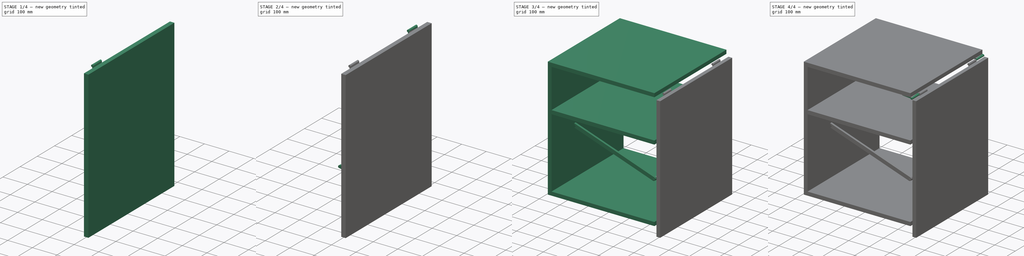
[diagram: build sequence overview — one tinted view per stage of 4, left to right]
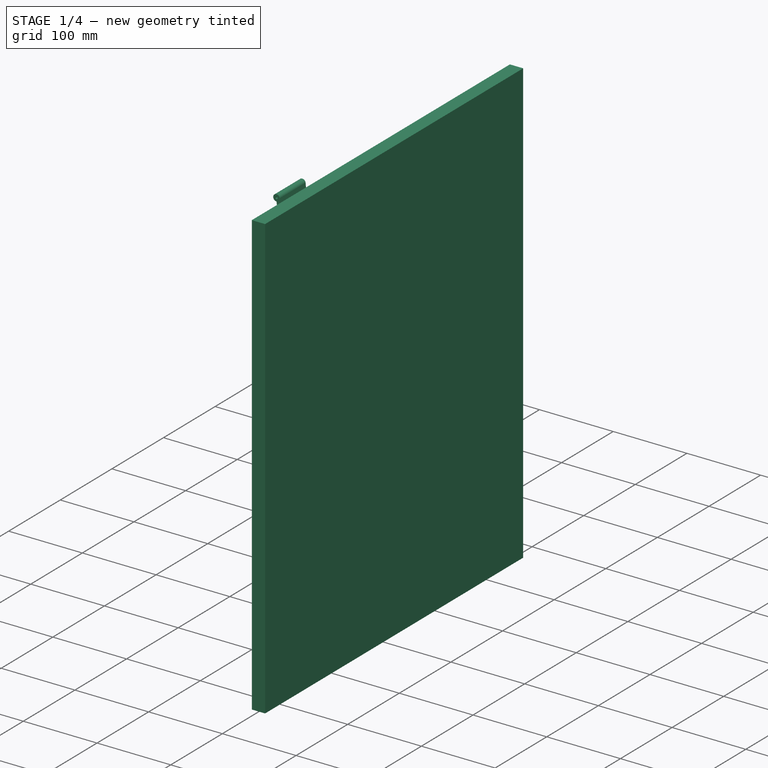
[diagram: stage 1 of 4 — iso view after this stage's code; geometry added in this stage tinted green]
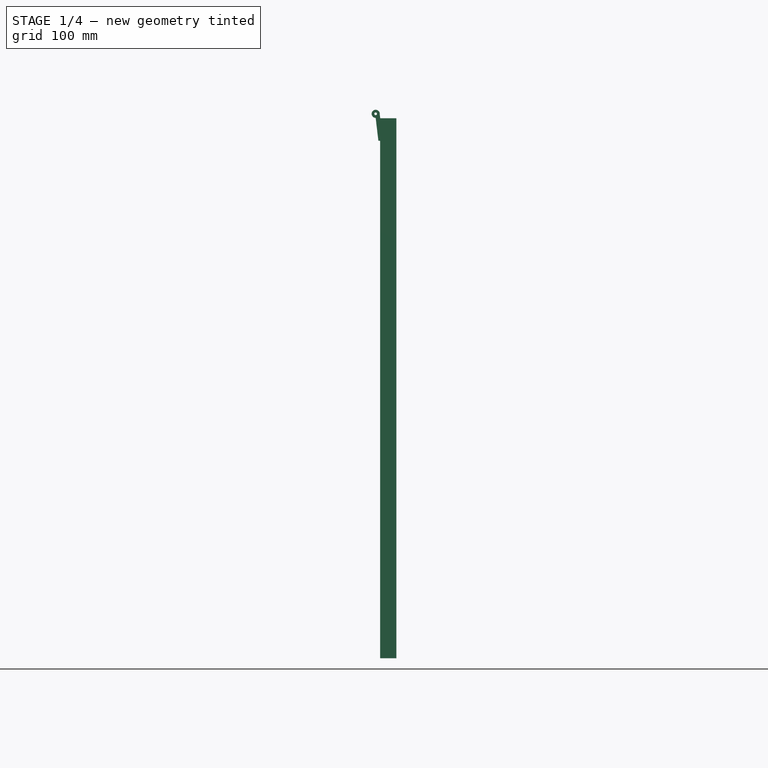
[diagram: stage 1 of 4 — front view after this stage's code; geometry added in this stage tinted green]
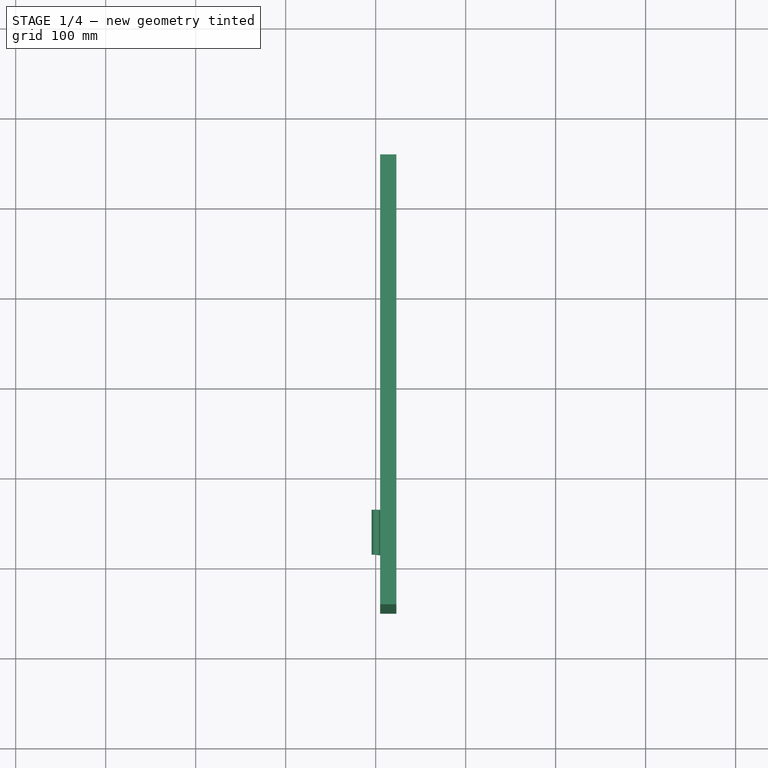
[diagram: stage 1 of 4 — top view after this stage's code; geometry added in this stage tinted green]
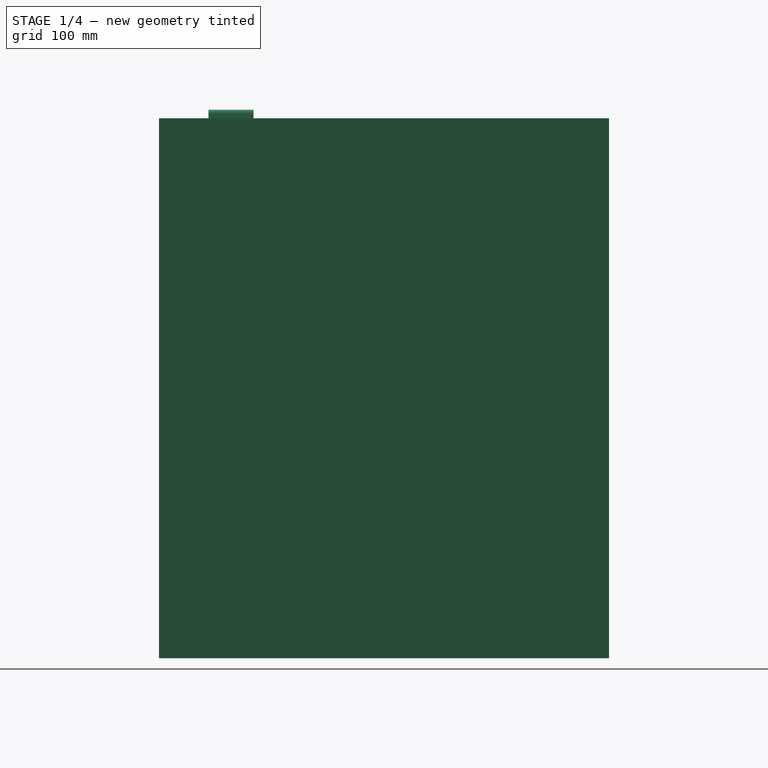
[diagram: stage 1 of 4 — right view after this stage's code; geometry added in this stage tinted green]
FCSTD DOCUMENT  (FreeCAD 0.21R33771 (Git))
Label: table_jeu
License: All rights reserved
LicenseURL: https://en.wikipedia.org/wiki/All_rights_reserved
objects: Sketcher::SketchObject×6, PartDesign::Pad×6, PartDesign::CoordinateSystem×4, PartDesign::Body×3, PartDesign::Mirrored×3, App::Part×3, App::DocumentObjectGroup×3, PartDesign::Plane×2, App::Link×2, Spreadsheet::Sheet×1, PartDesign::Line×1, App::FeaturePython×1
note: 31 computed .brp shape members not serialized (recipe doc carries the construction recipe); baked Part::Feature solids carry a one-line shape summary decoded from their .brp

FEATURE [Sketcher::SketchObject] Sketch002
  FullyConstrained = true
  MapMode = 5
  Placement = pos=(0,0,0) rot=(1,0,0;1.5708rad)
  Support = -> [XZ_Plane003]
  expr: Constraints[8] = Spreadsheet.plk_thic
  sketch-geometry (4):
    g0: LineSegment StartX=5 StartY=-5 StartZ=0 EndX=23 EndY=-5 EndZ=0
    g1: LineSegment StartX=23 StartY=-5 StartZ=0 EndX=23 EndY=-605 EndZ=0
    g2: LineSegment StartX=23 StartY=-605 StartZ=0 EndX=5 EndY=-605 EndZ=0
    g3: LineSegment StartX=5 StartY=-605 StartZ=0 EndX=5 EndY=-5 EndZ=0
  constraints (12):
    c: Coincident(g0,g1)
    c: Coincident(g1,g2)
    c: Coincident(g2,g3)
    c: Coincident(g3,g0)
    c: Horizontal(g0)
    c: Horizontal(g2)
    c: Vertical(g1)
    c: Vertical(g3)
    c: Distance(g0) = 18
    c: DistanceX(g-1,g0) = 5
    c: DistanceY(g0,g-1) = 5
    c: Distance(g3) = 600
FEATURE [PartDesign::Pad] Pad002
  Direction = (0,-1,-2e-16)
  Length = 500
  Length2 = 10
  Midplane = true
  Placement = pos=(0,0,0) rot=(1,0,0;1.5708rad)
  Profile = -> Sketch002
  ReferenceAxis = -> Sketch002 [N_Axis]
  Type = 0
FEATURE [Sketcher::SketchObject] Sketch003
  ExternalGeometry = -> [Pad002]
  FullyConstrained = true
  MapMode = 5
  Placement = pos=(0,-250,-5.55e-14) rot=(1,0,0;1.5708rad)
  Support = -> [Pad002]
  sketch-geometry (6):
    g0: Circle CenterX=-3.47e-14 CenterY=0 CenterZ=0 NormalX=0 NormalY=0 NormalZ=1 AngleXU=0 Radius=1.5
    g1: ArcOfCircle CenterX=-3.47e-14 CenterY=0 CenterZ=0 NormalX=0 NormalY=0 NormalZ=1 AngleXU=0 Radius=4.5 StartAngle=0 EndAngle=4.71239
    g2: LineSegment StartX=4.5 StartY=0 StartZ=0 EndX=5 EndY=-5 EndZ=0
    g3: LineSegment StartX=5 StartY=-5 StartZ=0 EndX=5 EndY=-30 EndZ=0
    g4: LineSegment StartX=5 StartY=-30 StartZ=0 EndX=3 EndY=-30 EndZ=0
    g5: LineSegment StartX=3 StartY=-30 StartZ=0 EndX=-3.46e-14 EndY=-4.5 EndZ=0
  constraints (16):
    c: Coincident(g0,g-1)
    c: Coincident(g1,g0)
    c: PointOnObject(g1,g-1)
    c: Diameter(g0) = 3
    c: Radius(g1) = 4.5
    c: Coincident(g1,g2)
    c: Coincident(g2,g-3)
    c: Coincident(g2,g3)
    c: PointOnObject(g3,g-3)
    c: Coincident(g3,g4)
    c: Horizontal(g4)
    c: Coincident(g4,g5)
    c: Coincident(g5,g1)
    c: Distance(g4) = 2
    c: Distance(g3) = 25
    c: Vertical(g0,g1)
FEATURE [PartDesign::Pad] Pad003
  BaseFeature = -> Pad002
  Direction = (0,-1,-2e-16)
  Length = 105
  Length2 = -55
  Placement = pos=(0,0,0) rot=(1,0,0;1.5708rad)
  Profile = -> Sketch003
  ReferenceAxis = -> Sketch003 [N_Axis]
  Reversed = true
  Type = 4
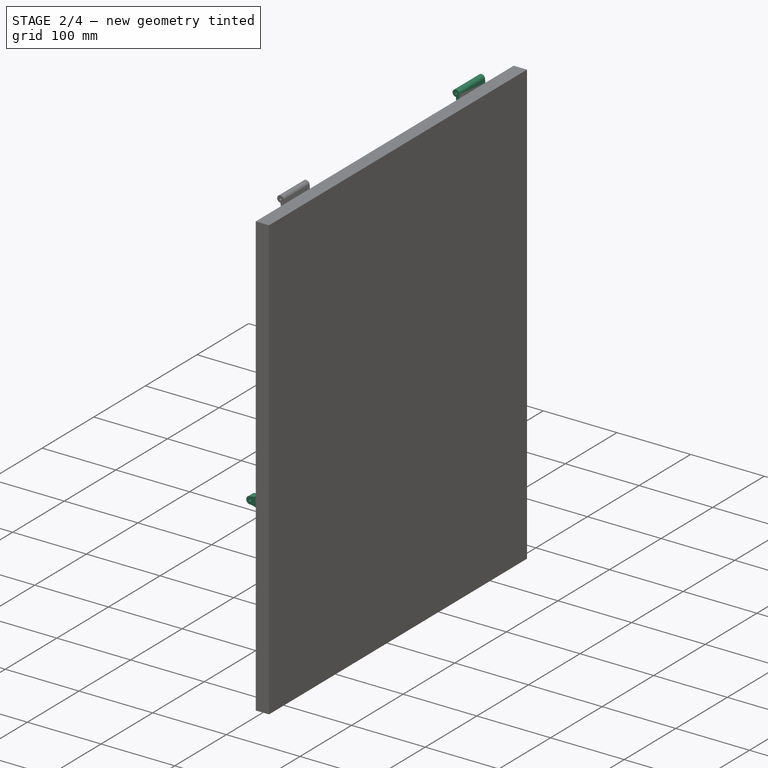
[diagram: stage 2 of 4 — iso view after this stage's code; geometry added in this stage tinted green]
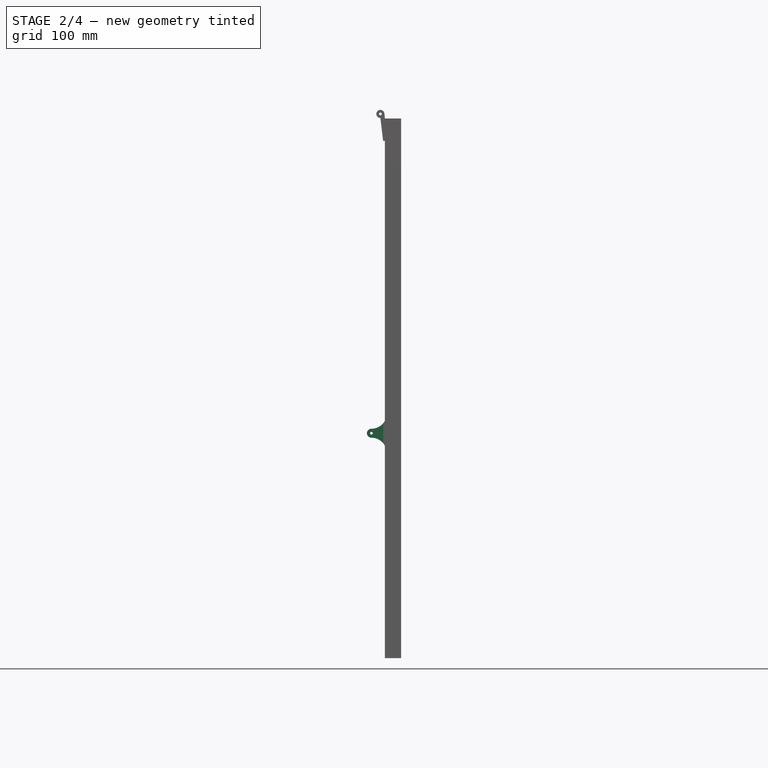
[diagram: stage 2 of 4 — front view after this stage's code; geometry added in this stage tinted green]
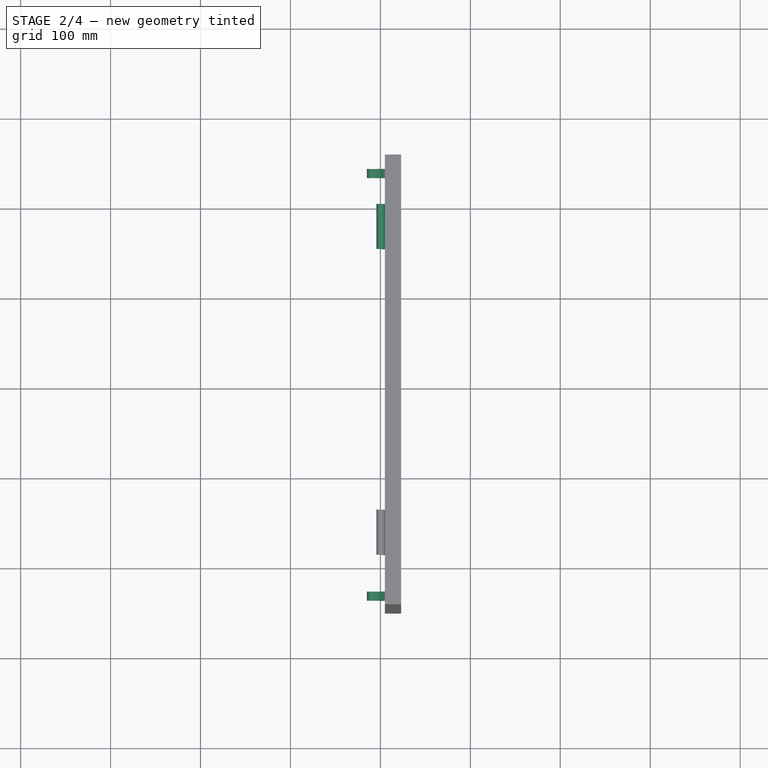
[diagram: stage 2 of 4 — top view after this stage's code; geometry added in this stage tinted green]
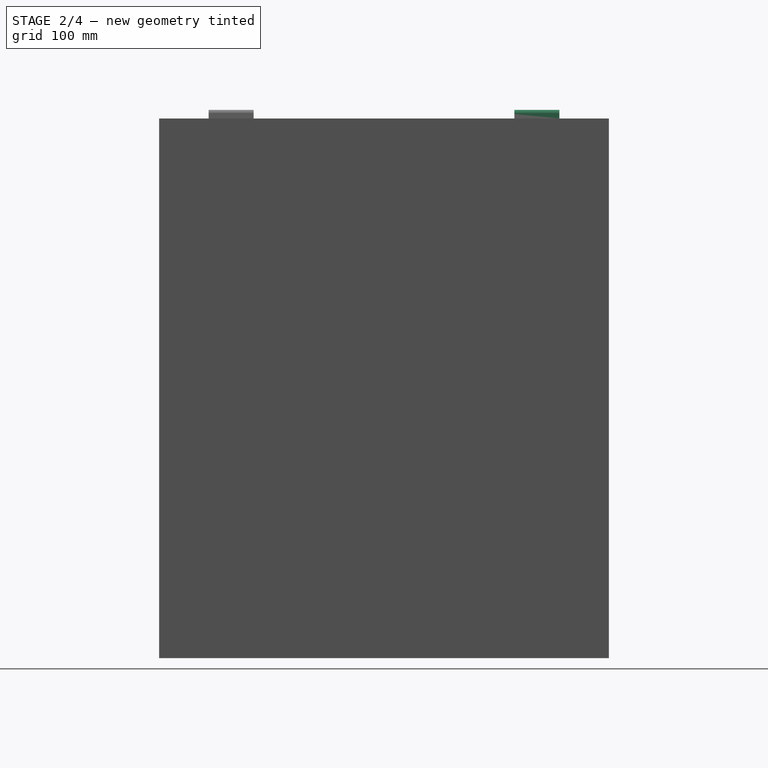
[diagram: stage 2 of 4 — right view after this stage's code; geometry added in this stage tinted green]
FEATURE [Sketcher::SketchObject] Sketch004
  ExternalGeometry = -> [Pad003]
  FullyConstrained = true
  MapMode = 5
  Placement = pos=(0,-250,-5.55e-14) rot=(1,0,0;1.5708rad)
  Support = -> [Pad003]
  sketch-geometry (6):
    g0: Circle CenterX=-10 CenterY=-355 CenterZ=0 NormalX=0 NormalY=0 NormalZ=1 AngleXU=0 Radius=1.5
    g1: ArcOfCircle CenterX=-10 CenterY=-355 CenterZ=0 NormalX=0 NormalY=0 NormalZ=1 AngleXU=0 Radius=5 StartAngle=1.5708 EndAngle=4.71239
    g2: ArcOfCircle CenterX=-10 CenterY=-377 CenterZ=0 NormalX=0 NormalY=0 NormalZ=1 AngleXU=0 Radius=17 StartAngle=0.489957 EndAngle=1.5708
    g3: LineSegment StartX=5 StartY=-369 StartZ=0 EndX=5 EndY=-341 EndZ=0
    g4: ArcOfCircle CenterX=-10 CenterY=-333 CenterZ=0 NormalX=0 NormalY=0 NormalZ=1 AngleXU=0 Radius=17 StartAngle=4.71239 EndAngle=5.79323
    g5: GeomPoint X=5 Y=-355 Z=0
  constraints (17):
    c: Coincident(g1,g0)
    c: Tangent(g1,g2) = 1.5708
    c: PointOnObject(g2,g-3)
    c: Coincident(g2,g3)
    c: Coincident(g4,g3)
    c: Coincident(g4,g1)
    c: Diameter(g0) = 3
    c: Radius(g1) = 5
    c: PointOnObject(g3,g-3)
    c: Equal(g2,g4)
    c: Vertical(g1,g1)
    c: Vertical(g1,g0)
    c: Symmetric(g3,g2,g5)
    c: Horizontal(g0,g5)
    c: DistanceY(g-3,g0) = 250
    c: DistanceX(g0,g5) = 15
    c: Radius(g4) = 17
FEATURE [PartDesign::Pad] Pad004
  BaseFeature = -> Pad003
  Direction = (0,-1,-2e-16)
  Length = 20
  Length2 = -10
  Placement = pos=(0,0,0) rot=(1,0,0;1.5708rad)
  Profile = -> Sketch004
  ReferenceAxis = -> Sketch004 [N_Axis]
  Reversed = true
  Type = 4
FEATURE [PartDesign::Mirrored] Mirrored001
  BaseFeature = -> Pad004
  MirrorPlane = -> XZ_Plane003
  Originals = -> [Pad003,Pad004]
  Placement = pos=(0,0,0) rot=(1,0,0;1.5708rad)
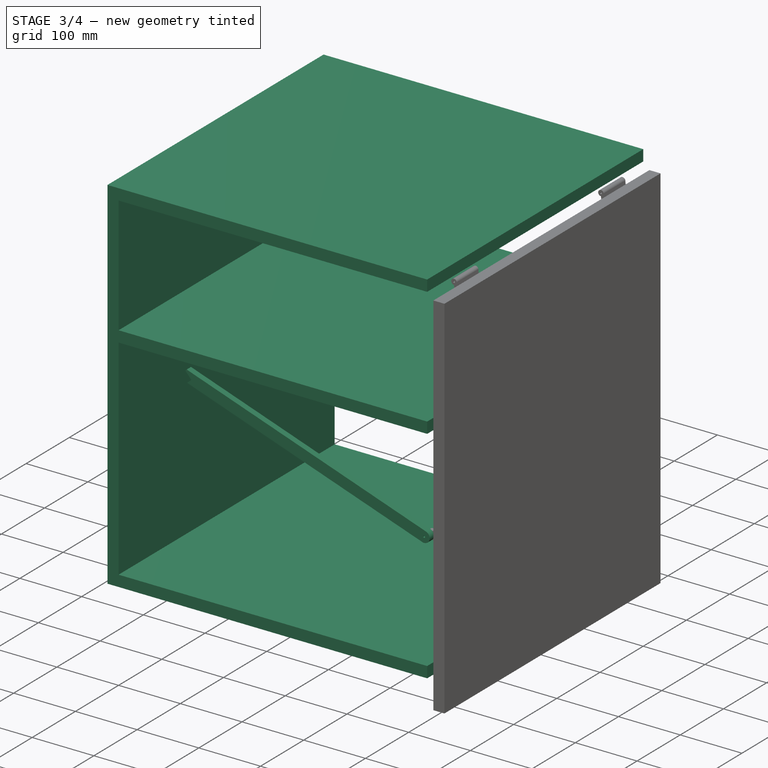
[diagram: stage 3 of 4 — iso view after this stage's code; geometry added in this stage tinted green]
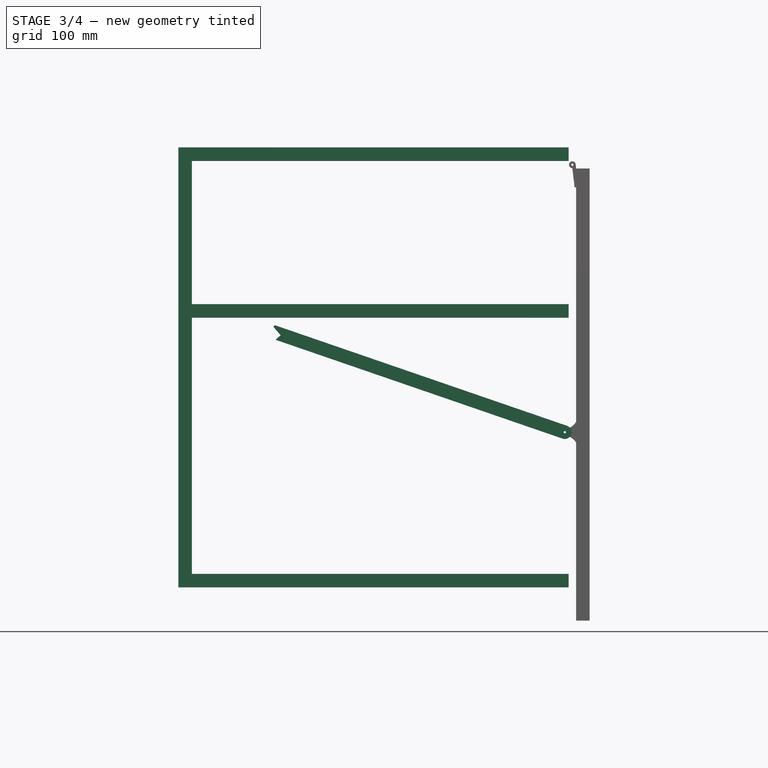
[diagram: stage 3 of 4 — front view after this stage's code; geometry added in this stage tinted green]
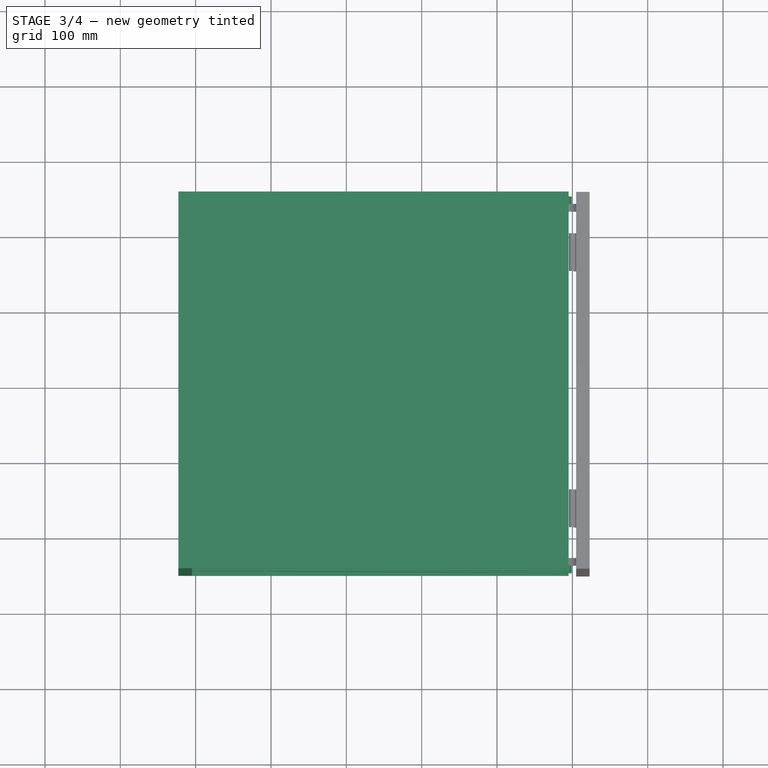
[diagram: stage 3 of 4 — top view after this stage's code; geometry added in this stage tinted green]
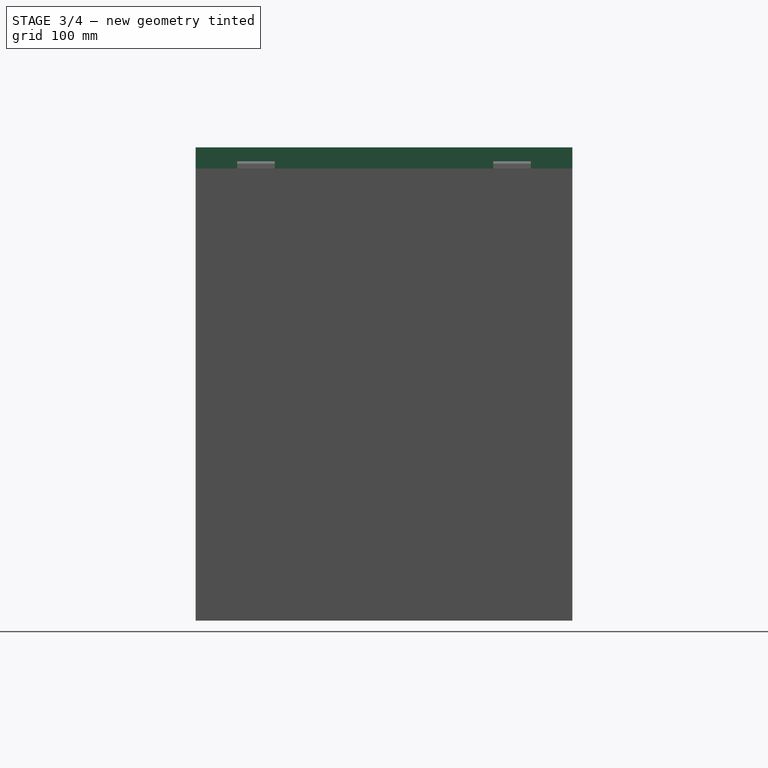
[diagram: stage 3 of 4 — right view after this stage's code; geometry added in this stage tinted green]
FEATURE [PartDesign::Body] Body
  Origin = -> Origin
FEATURE [Sketcher::SketchObject] Sketch
  FullyConstrained = true
  MapMode = 5
  Placement = pos=(0,0,0) rot=(1,0,0;1.5708rad)
  Support = -> [XZ_Plane007]
  expr: Constraints[1] = Spreadsheet.plk_thic
  expr: Constraints[27] = Spreadsheet.plk_thic
  sketch-geometry (12):
    g0: LineSegment StartX=-5 StartY=5 StartZ=0 EndX=-5 EndY=23 EndZ=0
    g1: LineSegment StartX=-5 StartY=23 StartZ=0 EndX=-523 EndY=23 EndZ=0
    g2: LineSegment StartX=-523 StartY=23 StartZ=0 EndX=-523 EndY=-561 EndZ=0
    g3: LineSegment StartX=-523 StartY=-561 StartZ=0 EndX=-5 EndY=-561 EndZ=0
    g4: LineSegment StartX=-5 StartY=-561 StartZ=0 EndX=-5 EndY=-543 EndZ=0
    g5: LineSegment StartX=-5 StartY=-543 StartZ=0 EndX=-505 EndY=-543 EndZ=0
    g6: LineSegment StartX=-505 StartY=-543 StartZ=0 EndX=-505 EndY=-203 EndZ=0
    g7: LineSegment StartX=-505 StartY=-203 StartZ=0 EndX=-5 EndY=-203 EndZ=0
    g8: LineSegment StartX=-5 StartY=-203 StartZ=0 EndX=-5 EndY=-185 EndZ=0
    g9: LineSegment StartX=-5 StartY=-185 StartZ=0 EndX=-505 EndY=-185 EndZ=0
    g10: LineSegment StartX=-505 StartY=-185 StartZ=0 EndX=-505 EndY=5 EndZ=0
    g11: LineSegment StartX=-505 StartY=5 StartZ=0 EndX=-5 EndY=5 EndZ=0
  constraints (36):
    c: Vertical(g0)
    c: DistanceY(g0,g0) = 18
    c: Coincident(g0,g1)
    c: Horizontal(g1)
    c: Coincident(g1,g2)
    c: Vertical(g2)
    c: Coincident(g2,g3)
    c: Horizontal(g3)
    c: Coincident(g3,g4)
    c: Vertical(g4)
    c: Coincident(g4,g5)
    c: Horizontal(g5)
    c: Coincident(g5,g6)
    c: Vertical(g6)
    c: Coincident(g6,g7)
    c: Horizontal(g7)
    c: Coincident(g7,g8)
    c: Vertical(g8)
    c: Coincident(g8,g9)
    c: Horizontal(g9)
    c: Coincident(g9,g10)
    c: Vertical(g10)
    c: Coincident(g10,g11)
    c: Coincident(g11,g0)
    c: Horizontal(g11)
    c: Equal(g8,g4)
    c: Equal(g4,g0)
    c: DistanceX(g1,g10) = 18
    c: Vertical(g6,g9)
    c: Distance(g10) = 190
    c: Distance(g6) = 340
    c: Vertical(g8,g0)
    c: Vertical(g3,g7)
    c: Distance(g9) = 500
    c: DistanceX(g0,g-1) = 5
    c: DistanceY(g-1,g0) = 5
FEATURE [Spreadsheet::Sheet] Spreadsheet
  cells = A1='plk_thic; B1(plk_thic)==18 mm; A2='lid_angle; B2(lid_angle)==Variables.t_anim * 90; A3='leg_angle; B3(leg_angle)==-19 - lid_angle / 2; B4='26-lid_angle; B5=0; C5=90; B6=-20; C6=-64
FEATURE [PartDesign::Pad] Pad
  Direction = (0,-1,2e-16)
  Length = 500
  Length2 = 10
  Midplane = true
  Placement = pos=(0,0,0) rot=(1,0,0;1.5708rad)
  Profile = -> Sketch
  ReferenceAxis = -> Sketch [N_Axis]
  Type = 0
FEATURE [PartDesign::Plane] Plane_1
  Length = 100
  MapMode = 5
  Placement = pos=(0,-200,0) rot=(-1,0,0;1.5708rad)
  ResizeMode = 1
  Support = -> [Mirrored]
  Width = 100
FEATURE [PartDesign::Line] HoleAxis_1
  AttacherType = Attacher::AttachEngineLine
  Length = 4.2272
  MapMode = 19
  Placement = pos=(0,-250,5.55e-14) rot=(1,0,0;1.5708rad)
  ResizeMode = 1
  Support = -> [Mirrored]
FEATURE [PartDesign::CoordinateSystem] LCS_1
  AttacherType = Attacher::AttachEngine3D
  MapMode = 5
  Placement = pos=(0,-200,0) rot=(-1,0,0;1.5708rad)
  Support = -> [Plane_1]
FEATURE [App::Part] Part  label="Coffre"
  Group = -> [Body,Sketch,Pad,Sketch001,Pad001,Mirrored,HoleAxis_1,Plane_1,LCS_1]
  Origin = -> Origin001
FEATURE [PartDesign::Plane] Plane_2
  Length = 100
  MapMode = 5
  Placement = pos=(0,-195,0) rot=(1,0,0;1.5708rad)
  ResizeMode = 1
  Support = -> [Mirrored001]
  Width = 100
FEATURE [PartDesign::CoordinateSystem] LCS_2
  AttacherType = Attacher::AttachEngine3D
  MapMode = 5
  Placement = pos=(0,-195,0) rot=(1,0,0;1.5708rad)
  Support = -> [Plane_2]
FEATURE [PartDesign::CoordinateSystem] LCS_Origin
  AttacherType = Attacher::AttachEngine3D
  MapMode = 2
  Support = -> [X_Axis006]
FEATURE [App::DocumentObjectGroup] Constraints
FEATURE [App::FeaturePython] Variables  # WARN: FeaturePython — macro-defined, semantics opaque (R4)
  Type = App::PropertyContainer
  t_anim = 0
FEATURE [App::DocumentObjectGroup] Configurations
FEATURE [App::Link] Coffre  label="Coffre001"
  AttachedBy = #LCS_1
  AttachedTo = Parent Assembly#LCS_Origin
  AttachmentOffset = pos=(0,0,0) rot=(1,0,0;4.71239rad)
  LinkPlacement = pos=(0,200,-8.7e-14) rot=(0,0,1;0rad)
  LinkedObject = -> Part
  Placement = pos=(0,200,-8.7e-14) rot=(0,0,1;0rad)
  SolverId = Asm4EE
  expr: Placement = LCS_Origin.Placement * AttachmentOffset * LCS_1.Placement ^ -1
FEATURE [PartDesign::CoordinateSystem] LCS_4
  AttacherType = Attacher::AttachEngine3D
  MapMode = 11
  Placement = pos=(-10,-240,-355) rot=(0.57735,-0.57735,0.57735;2.0944rad)
  Support = -> [Mirrored001]
FEATURE [App::Link] Lid  label="Lid002"
  AttachedBy = #LCS_2
  AttachedTo = Coffre#LCS_1
  AttachmentOffset = pos=(0,0,5) rot=(1,0,0;3.14159rad)
  LinkPlacement = pos=(-3.9e-14,200,-2.84e-14) rot=(0,0,1;0rad)
  LinkedObject = -> Part001
  Placement = pos=(-3.9e-14,200,-2.84e-14) rot=(0,0,1;0rad)
  SolverId = Asm4EE
  expr: Placement = Coffre.Placement * LCS_1.Placement * AttachmentOffset * LCS_2.Placement ^ -1
FEATURE [App::Part] Assembly
  AssemblyType = Part::Link
  Group = -> [LCS_Origin,Constraints,Variables,Configurations,Coffre,Lid]
  Origin = -> Origin006
  Type = Assembly
FEATURE [Sketcher::SketchObject] Sketch005
  AttachmentOffset = pos=(0,0,240) rot=(0,0,1;-0.331613rad)
  ExternalGeometry = -> [Mirrored001]
  FullyConstrained = true
  MapMode = 5
  Placement = pos=(0,-240,-5.33e-14) rot=(-0.97312,-0.162845,0.162845;4.68515rad)
  Support = -> [XZ_Plane003]
  expr: .AttachmentOffset.Rotation.Angle = Spreadsheet.leg_angle
  expr: Constraints[11] = Spreadsheet.plk_thic
  sketch-geometry (7):
    g0: Circle CenterX=106.122 CenterY=-338.915 CenterZ=0 NormalX=0 NormalY=0 NormalZ=1 AngleXU=0 Radius=1.5
    g1: ArcOfCircle CenterX=106.122 CenterY=-338.915 CenterZ=0 NormalX=0 NormalY=0 NormalZ=1 AngleXU=0 Radius=9 StartAngle=4.71239 EndAngle=7.85398
    g2: LineSegment StartX=106.122 StartY=-329.915 StartZ=0 EndX=-303.878 EndY=-329.915 EndZ=0
    g3: LineSegment StartX=-303.878 StartY=-329.915 StartZ=0 EndX=-305.378 EndY=-332.513 EndZ=0
    g4: LineSegment StartX=-305.378 StartY=-332.513 StartZ=0 EndX=-292.388 EndY=-340.013 EndZ=0
    g5: LineSegment StartX=-292.388 StartY=-340.013 StartZ=0 EndX=-296.95 EndY=-347.915 EndZ=0
    g6: LineSegment StartX=-296.95 StartY=-347.915 StartZ=0 EndX=106.122 EndY=-347.915 EndZ=0
  constraints (20):
    c: Coincident(g0,g-3)
    c: Coincident(g1,g0)
    c: Coincident(g1,g2)
    c: Horizontal(g2)
    c: Coincident(g2,g3)
    c: Coincident(g3,g4)
    c: Coincident(g4,g5)
    c: Coincident(g5,g6)
    c: Coincident(g6,g1)
    c: Horizontal(g6)
    c: Diameter(g0) = 3
    c: Diameter(g1) = 18
    c: Perpendicular(g4,g5)
    c: Distance(g4) = 15
    c: Distance(g2) = 410
    c: Vertical(g1,g1)
    c: Vertical(g1,g0)
    c: Distance(g3) = 3
    c: Angle(g3,g2) = 2.0944
    c: Angle(g4,g3) = 1.5708
FEATURE [PartDesign::Pad] Pad005
  BaseFeature = -> Mirrored001
  Direction = (0,-1,-2e-16)
  Length = 10
  Length2 = 10
  Placement = pos=(0,0,0) rot=(1,0,0;1.5708rad)
  Profile = -> Sketch005
  ReferenceAxis = -> Sketch005 [N_Axis]
  Type = 0
FEATURE [PartDesign::Body] MirroredBody
  Origin = -> Origin007
FEATURE [PartDesign::Mirrored] Mirrored002
  BaseFeature = -> Pad005
  MirrorPlane = -> XZ_Plane003
  Originals = -> [Pad005]
  Placement = pos=(0,0,0) rot=(1,0,0;1.5708rad)
FEATURE [PartDesign::Body] Body001  label="Lid001"
  Group = -> [Sketch002,Pad002,Sketch003,Pad003,Sketch004,Pad004,Mirrored001,LCS_4,Sketch005,Pad005,Mirrored002]
  Origin = -> Origin003
  Tip = -> Mirrored002
  expr: .Placement.Rotation.Angle = Spreadsheet.lid_angle
FEATURE [App::Part] Part001  label="Lid"
  Group = -> [Body001,LCS_2,Plane_2,MirroredBody]
  Origin = -> Origin002
FEATURE [App::DocumentObjectGroup] Parts
  Group = -> [Part,Part001]
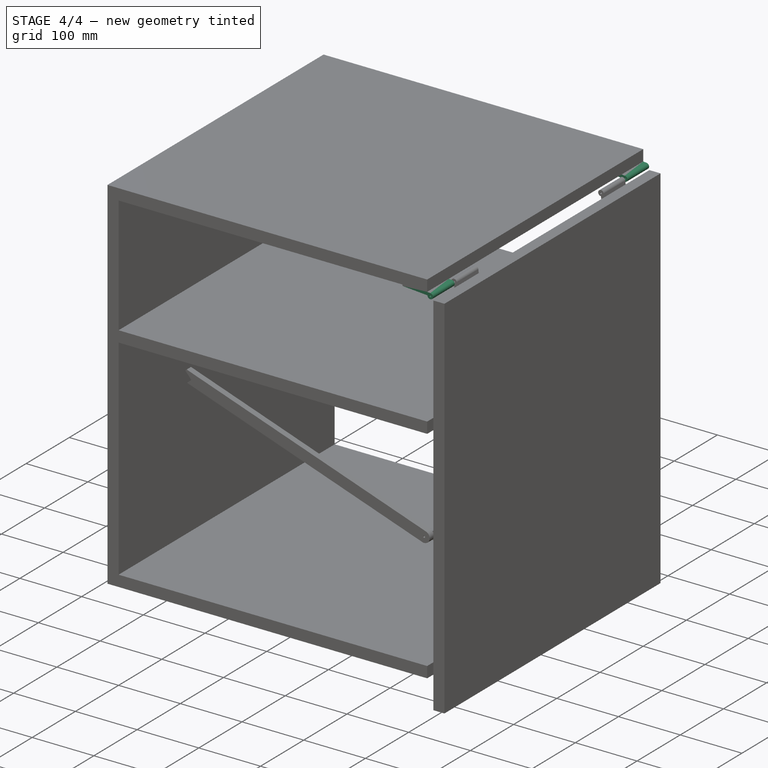
[diagram: stage 4 of 4 — iso view after this stage's code; geometry added in this stage tinted green]
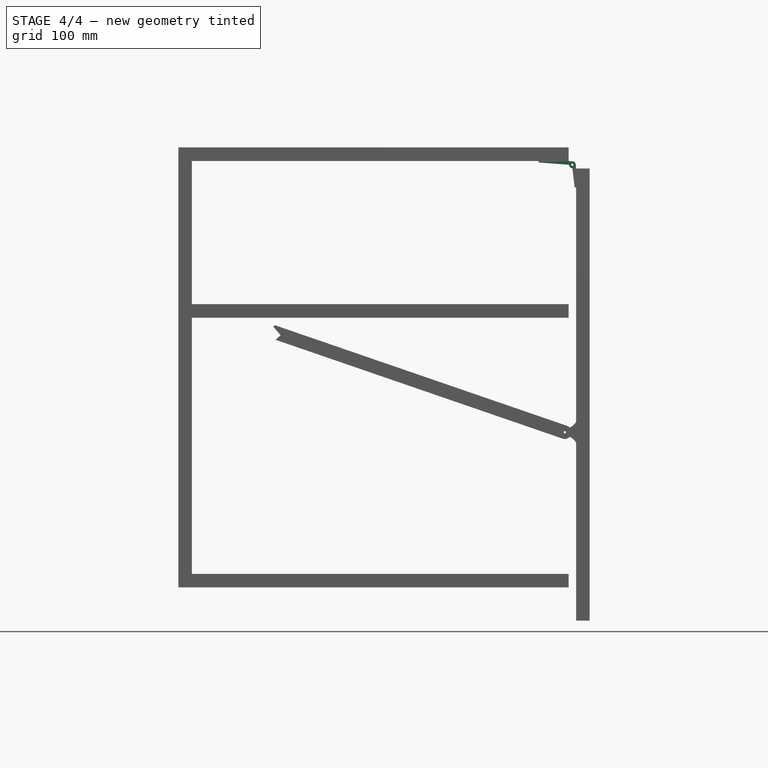
[diagram: stage 4 of 4 — front view after this stage's code; geometry added in this stage tinted green]
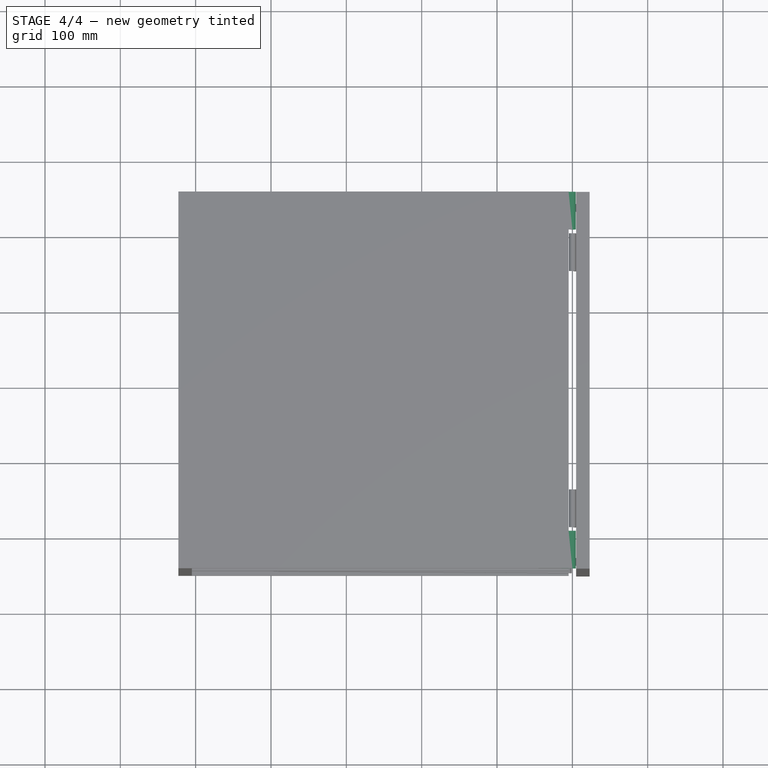
[diagram: stage 4 of 4 — top view after this stage's code; geometry added in this stage tinted green]
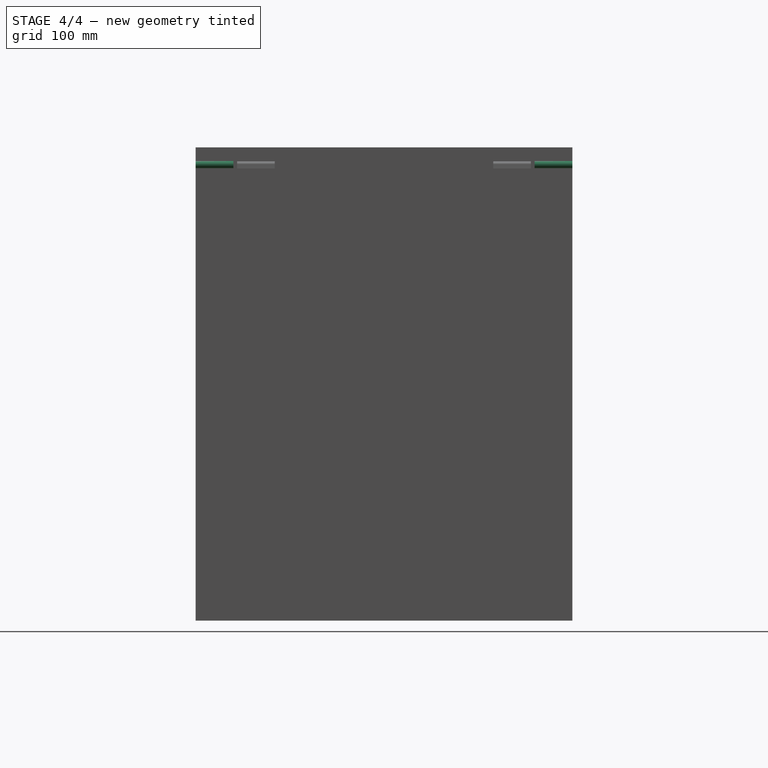
[diagram: stage 4 of 4 — right view after this stage's code; geometry added in this stage tinted green]
FEATURE [Sketcher::SketchObject] Sketch001
  ExternalGeometry = -> [Pad]
  FullyConstrained = true
  MapMode = 5
  Placement = pos=(0,-250,5.55e-14) rot=(1,0,0;1.5708rad)
  Support = -> [Pad]
  sketch-geometry (6):
    g0: ArcOfCircle CenterX=0 CenterY=0 CenterZ=0 NormalX=0 NormalY=0 NormalZ=1 AngleXU=0 Radius=4.5 StartAngle=3.14159 EndAngle=7.85398
    g1: LineSegment StartX=1.4e-15 StartY=4.5 StartZ=0 EndX=-5 EndY=5 EndZ=0
    g2: LineSegment StartX=-5 StartY=5 StartZ=0 EndX=-45 EndY=5 EndZ=0
    g3: LineSegment StartX=-45 StartY=5 StartZ=0 EndX=-45 EndY=3 EndZ=0
    g4: LineSegment StartX=-45 StartY=3 StartZ=0 EndX=-4.5 EndY=9e-16 EndZ=0
    g5: Circle CenterX=0 CenterY=0 CenterZ=0 NormalX=0 NormalY=0 NormalZ=1 AngleXU=0 Radius=1.5
  constraints (16):
    c: Coincident(g0,g-1)
    c: PointOnObject(g0,g-2)
    c: PointOnObject(g0,g-1)
    c: Coincident(g0,g1)
    c: Coincident(g1,g-3)
    c: Coincident(g1,g2)
    c: PointOnObject(g2,g-3)
    c: Coincident(g2,g3)
    c: Vertical(g3)
    c: Coincident(g3,g4)
    c: Coincident(g4,g0)
    c: Radius(g0) = 4.5
    c: Distance(g3) = 2
    c: Distance(g2) = 40
    c: Coincident(g5,g0)
    c: Diameter(g5) = 3
FEATURE [PartDesign::Pad] Pad001
  Direction = (0,-1,2e-16)
  Length = 50
  Length2 = 10
  Placement = pos=(0,0,0) rot=(1,0,0;1.5708rad)
  Profile = -> Sketch001
  ReferenceAxis = -> Sketch001 [N_Axis]
  Reversed = true
  Type = 0
FEATURE [PartDesign::Mirrored] Mirrored
  MirrorPlane = -> XZ_Plane
  Originals = -> [Pad001]
  Placement = pos=(0,0,0) rot=(1,0,0;1.5708rad)
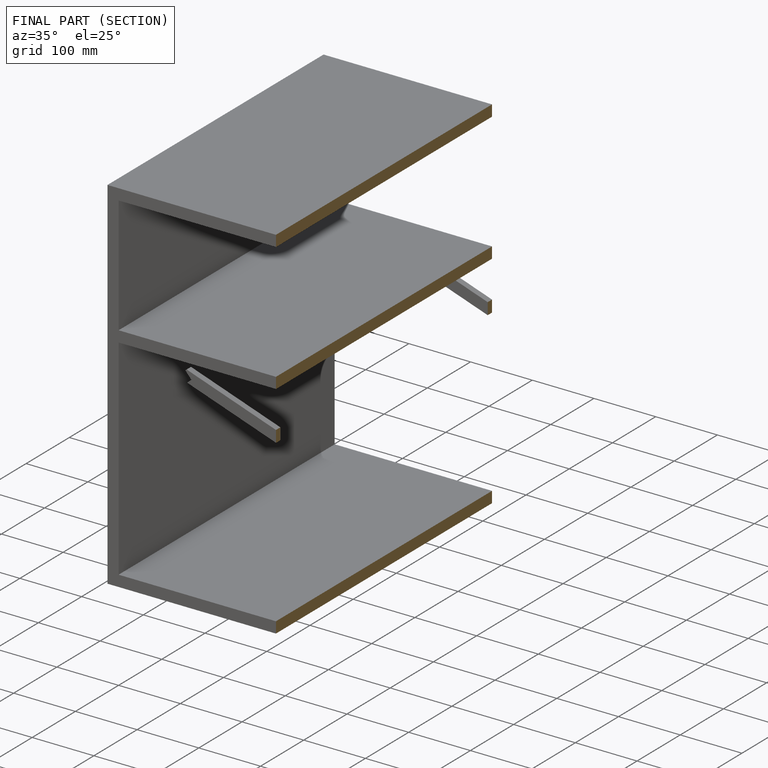
[diagram: finished part — half-section view (interior)]
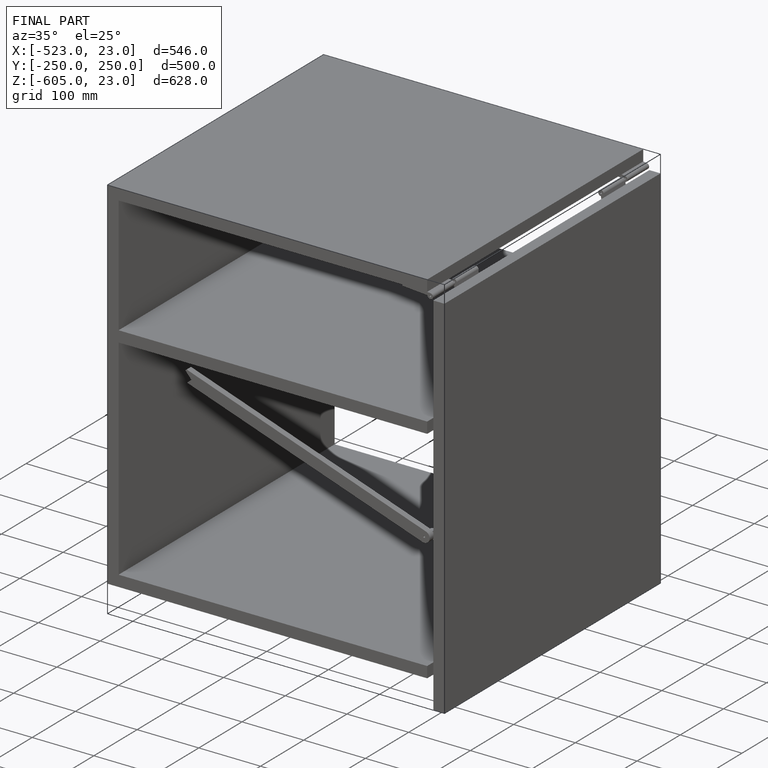
[diagram: finished part — iso view with bounding-box wireframe]
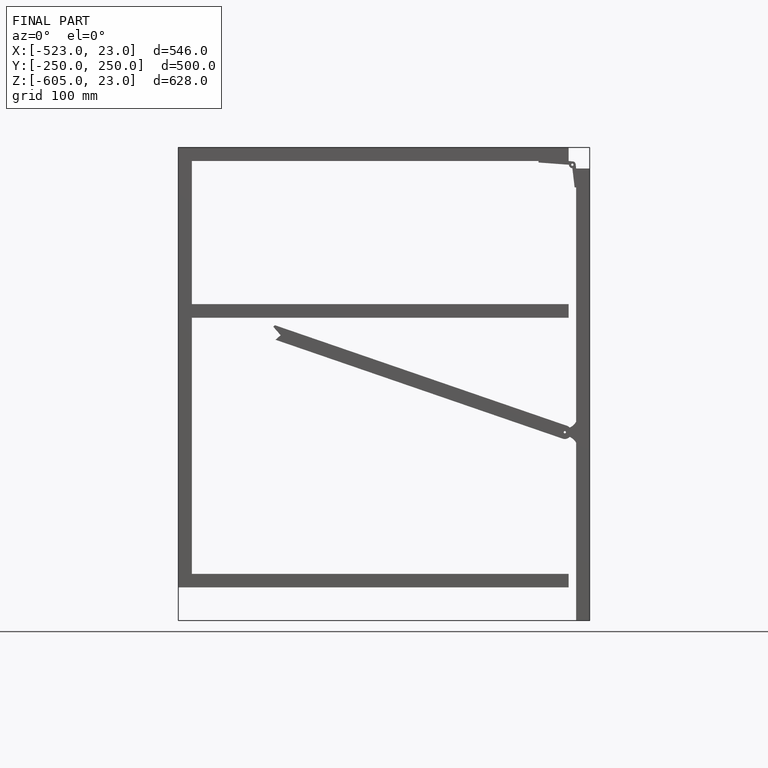
[diagram: finished part — front view with bounding-box wireframe]
